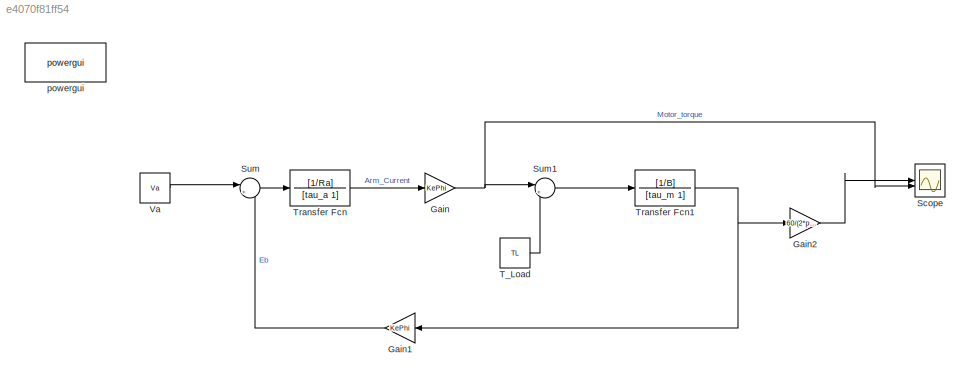
MODEL slx_e4070f81ff54
KIND model
CONFIG AbsTol = auto
CONFIG EnableMultiTasking = off
CONFIG FixedStep = auto
CONFIG MaxStep = auto
CONFIG MinStep = auto
CONFIG RelTol = 1e-3
CONFIG SampleTimeConstraint = Unconstrained
CONFIG SolverName = VariableStepAuto
CONFIG StartTime = 0.0
CONFIG StopTime = 10.0
BLOCK [Gain] Gain
  Gain = KePhi
BLOCK [Gain] Gain1
  Gain = KePhi
  NameLocation = top
BLOCK [Gain] Gain2
  Gain = 60/(2*pi)
BLOCK [Scope] Scope
  ActiveDisplayString = 2
  ActiveDisplayYMaximum = 500.78644718809193
  ActiveDisplayYMinimum = 50.02894325891279
  Floating = off
  GraphicalSettings = {"Style":{"BackgroundColor":[1,1,1],"AxesColor":[1,1,1],"LabelsColor":[0,0,0],"PreserveColors":false,"Visible":[true,true],"LineStyle":["-","-"],"LineWidth":[1.5,1.5],"BarWidth":[0.9,0.9],"LineColor":[[0.9294117647058824,0.6941176470588235,0.12549019607843137],[0.06666666666666667,0.44313725490196076,0.7450980392156863]],"LineFaceAlpha":[1,1],"LineEdgeAlpha":[1,1],"Marker":["none","none"],"FontSiz...<+2347ch>
  LayoutDimensionsString = [2,1]
  MultipleDisplayCache = [{"MaxYLimMag":10,"MaxYLimReal":3043.3242453933985,"MinYLimMag":0,"MinYLimReal":-1480.4636176319568,"PlotAsMagnitudePhase":false,"ShowGrid":true,"ShowLegend":false,"Title":"Speed","YLabel":"RPM"},{"MaxYLimMag":10,"MaxYLimReal":500.78644718809193,"MinYLimMag":0,"MinYLimReal":50.02894325891279,"PlotAsMagnitudePhase":false,"ShowGrid":true,"ShowLegend":false,"Title":"Torque","YLabel":"Nm"}]
  NumInputPorts = 2
  ScopeFrameLocation = window
  Title = Torque
  WasSavedAsWebScope = on
  WindowPosition = [1.000000,49.000000,1536.000000,793.000000,]
  YLabel = Nm
BLOCK [Sum] Sum
  Inputs = |+-
BLOCK [Sum] Sum1
  Inputs = |+-
BLOCK [Constant] T_Load
  Value = TL
BLOCK [TransferFcn] Transfer Fcn
  Denominator = [tau_a 1]
  Numerator = [1/Ra]
BLOCK [TransferFcn] Transfer Fcn1
  Denominator = [tau_m 1]
  Numerator = [1/B]
BLOCK [Constant] Va
  Value = Va
BLOCK [Reference] powergui  REF=spspowerguiLib/powergui
  LibrarySourceBlock = sps_lib/powergui
  Priority = 1
  SourceBlock = spspowerguiLib/powergui
  SourceType = PSB option menu block
LINE Gain1:1 -> Sum:2
LINE Gain2:1 -> Scope:1
NET Gain:1 -> Scope:2, Sum1:1
LINE Sum1:1 -> Transfer Fcn1:1
LINE Sum:1 -> Transfer Fcn:1
LINE T_Load:1 -> Sum1:2
NET Transfer Fcn1:1 -> Gain1:1, Gain2:1
LINE Transfer Fcn:1 -> Gain:1
LINE Va:1 -> Sum:1
note: NET lines group one-source signal fan-out (src -> all destinations, sorted); 1:1 wires keep LINE
